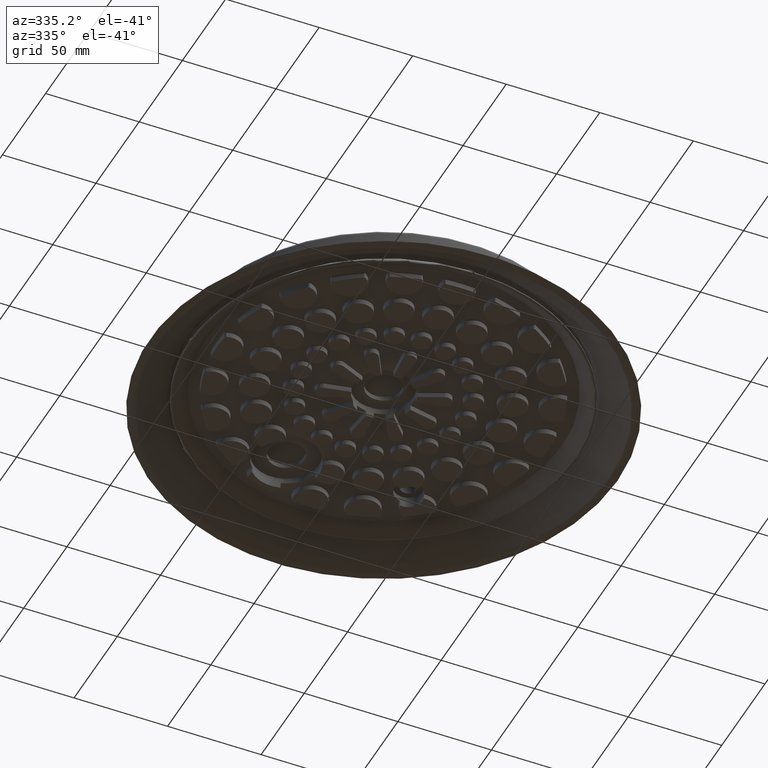
[diagram: clean part render]
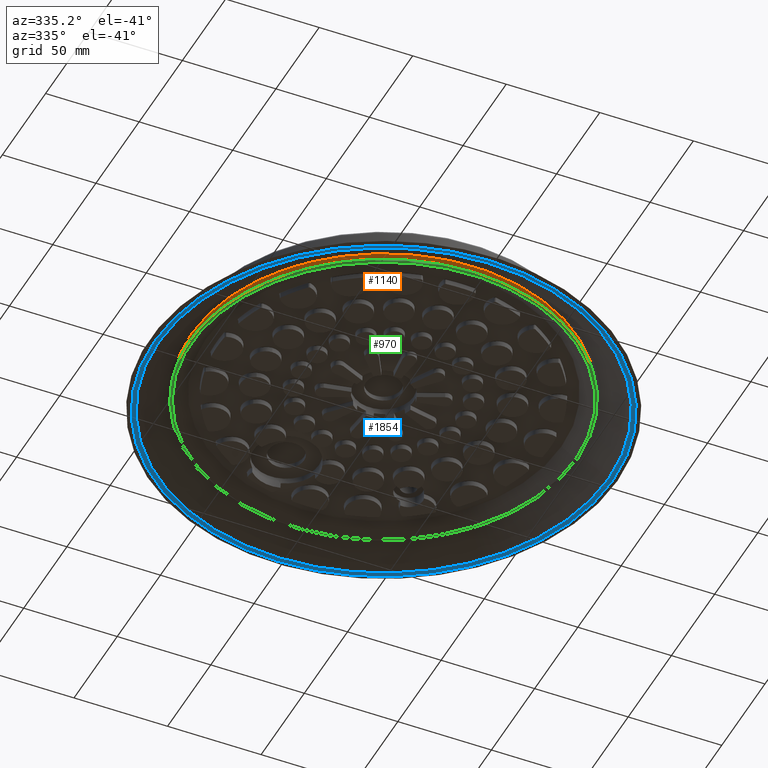
[diagram: same view with three faces highlighted in distinct colors, each labeled with its STEP entity id]
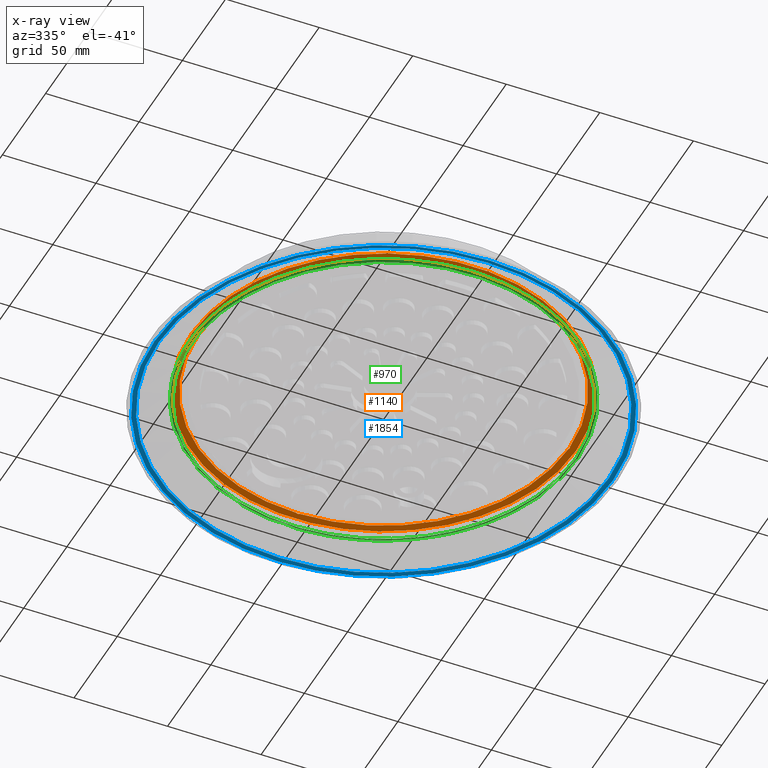
[diagram: x-ray of the same camera — body ghosted, the three highlighted faces saturated]
A machine part, auxiliary view with three faces highlighted in distinct colors.
The next image is the same camera in x-ray (body ghosted, the three faces saturated) — at least one of them is partly hidden behind the body in this view.
Their STEP definitions:

[orange] entity #1140 — the highlighted conical surface has half-angle 82 deg.
#1140 = ADVANCED_FACE( '', ( #2808, #2809 ), #2810, .F. );
#2808 = FACE_OUTER_BOUND( '', #5428, .T. );
#2809 = FACE_BOUND( '', #5429, .T. );
#2810 = CONICAL_SURFACE( '', #5430, 99.2006268263278, 1.43116998663535 );
#5428 = EDGE_LOOP( '', ( #10343 ) );
#5429 = EDGE_LOOP( '', ( #10344, #10345, #10346, #10347, #10348, #10349, #10350, #10351, #10352, #10353, #10354, #10355, #10356, #10357, #10358, #10359 ) );
#5430 = AXIS2_PLACEMENT_3D( '', #10360, #10361, #10362 );
#10343 = ORIENTED_EDGE( '', *, *, #15554, .F. );
#10344 = ORIENTED_EDGE( '', *, *, #15555, .F. );
#10345 = ORIENTED_EDGE( '', *, *, #15556, .T. );
#10346 = ORIENTED_EDGE( '', *, *, #15557, .T. );
#10347 = ORIENTED_EDGE( '', *, *, #15558, .T. );
#10348 = ORIENTED_EDGE( '', *, *, #15559, .F. );
#10349 = ORIENTED_EDGE( '', *, *, #15560, .T. );
#10350 = ORIENTED_EDGE( '', *, *, #15561, .T. );
#10351 = ORIENTED_EDGE( '', *, *, #15562, .T. );
#10352 = ORIENTED_EDGE( '', *, *, #15563, .F. );
#10353 = ORIENTED_EDGE( '', *, *, #15564, .T. );
#10354 = ORIENTED_EDGE( '', *, *, #15565, .T. );
#10355 = ORIENTED_EDGE( '', *, *, #15566, .T. );
#10356 = ORIENTED_EDGE( '', *, *, #15567, .F. );
#10357 = ORIENTED_EDGE( '', *, *, #15568, .T. );
#10358 = ORIENTED_EDGE( '', *, *, #15569, .T. );
#10359 = ORIENTED_EDGE( '', *, *, #15570, .T. );
#10360 = CARTESIAN_POINT( '', ( 0.000000000000000, 0.000000000000000, -2.50194638625172 ) );
#10361 = DIRECTION( '', ( -0.000000000000000, 0.000000000000000, -1.00000000000000 ) );
#10362 = DIRECTION( '', ( -1.00000000000000, 0.000000000000000, 0.000000000000000 ) );
#15554 = EDGE_CURVE( '', #18161, #18161, #18162, .T. );
#15555 = EDGE_CURVE( '', #18163, #18164, #18165, .T. );
#15556 = EDGE_CURVE( '', #18163, #18166, #18167, .T. );
#15557 = EDGE_CURVE( '', #18166, #18168, #18169, .T. );
#15558 = EDGE_CURVE( '', #18168, #18170, #18171, .T. );
#15559 = EDGE_CURVE( '', #18172, #18170, #18173, .T. );
#15560 = EDGE_CURVE( '', #18172, #18174, #18175, .T. );
#15561 = EDGE_CURVE( '', #18174, #18176, #18177, .T. );
#15562 = EDGE_CURVE( '', #18176, #18178, #18179, .T. );
#15563 = EDGE_CURVE( '', #18180, #18178, #18181, .T. );
#15564 = EDGE_CURVE( '', #18180, #18182, #18183, .T. );
#15565 = EDGE_CURVE( '', #18182, #18184, #18185, .T. );
#15566 = EDGE_CURVE( '', #18184, #18186, #18187, .T. );
#15567 = EDGE_CURVE( '', #18188, #18186, #18189, .T. );
#15568 = EDGE_CURVE( '', #18188, #18190, #18191, .T. );
#15569 = EDGE_CURVE( '', #18190, #18192, #18193, .T. );
#15570 = EDGE_CURVE( '', #18192, #18164, #18194, .T. );
#18161 = VERTEX_POINT( '', #22024 );
#18162 = CIRCLE( '', #22025, 102.863376873224 );
#18163 = VERTEX_POINT( '', #22026 );
#18164 = VERTEX_POINT( '', #22027 );
#18165 = B_SPLINE_CURVE_WITH_KNOTS( '', 3, ( #22028, #22029, #22030, #22031 ), .UNSPECIFIED., .F., .F., ( 4, 4 ), ( 0.00949564844719236, 0.00973086272465076 ), .UNSPECIFIED. );
#18166 = VERTEX_POINT( '', #22032 );
#18167 = B_SPLINE_CURVE_WITH_KNOTS( '', 3, ( #22033, #22034, #22035, #22036 ), .UNSPECIFIED., .F., .F., ( 4, 4 ), ( 2.00000000000005E-007, 0.00120020000000000 ), .UNSPECIFIED. );
#18168 = VERTEX_POINT( '', #22037 );
#18169 = B_SPLINE_CURVE_WITH_KNOTS( '', 3, ( #22038, #22039, #22040, #22041 ), .UNSPECIFIED., .F., .F., ( 4, 4 ), ( 0.00949564844719236, 0.00973086272465076 ), .UNSPECIFIED. );
#18170 = VERTEX_POINT( '', #22042 );
#18171 = CIRCLE( '', #22043, 99.2006268263278 );
#18172 = VERTEX_POINT( '', #22044 );
#18173 = B_SPLINE_CURVE_WITH_KNOTS( '', 3, ( #22045, #22046, #22047, #22048 ), .UNSPECIFIED., .F., .F., ( 4, 4 ), ( 0.0119838247623143, 0.0122190390397727 ), .UNSPECIFIED. );
#18174 = VERTEX_POINT( '', #22049 );
#18175 = B_SPLINE_CURVE_WITH_KNOTS( '', 3, ( #22050, #22051, #22052, #22053 ), .UNSPECIFIED., .F., .F., ( 4, 4 ), ( 2.00000000000981E-007, 0.00120020000000000 ), .UNSPECIFIED. );
#18176 = VERTEX_POINT( '', #22054 );
#18177 = B_SPLINE_CURVE_WITH_KNOTS( '', 3, ( #22055, #22056, #22057, #22058 ), .UNSPECIFIED., .F., .F., ( 4, 4 ), ( 0.0119838247623143, 0.0122190390397727 ), .UNSPECIFIED. );
#18178 = VERTEX_POINT( '', #22059 );
#18179 = CIRCLE( '', #22060, 99.2006268263278 );
#18180 = VERTEX_POINT( '', #22061 );
#18181 = B_SPLINE_CURVE_WITH_KNOTS( '', 3, ( #22062, #22063, #22064, #22065 ), .UNSPECIFIED., .F., .F., ( 4, 4 ), ( 0.0119838247623143, 0.0122190390397727 ), .UNSPECIFIED. );
#18182 = VERTEX_POINT( '', #22066 );
#18183 = B_SPLINE_CURVE_WITH_KNOTS( '', 3, ( #22067, #22068, #22069, #22070 ), .UNSPECIFIED., .F., .F., ( 4, 4 ), ( 2.00000000001089E-007, 0.00120020000000000 ), .UNSPECIFIED. );
#18184 = VERTEX_POINT( '', #22071 );
#18185 = B_SPLINE_CURVE_WITH_KNOTS( '', 3, ( #22072, #22073, #22074, #22075 ), .UNSPECIFIED., .F., .F., ( 4, 4 ), ( 0.0119838247623143, 0.0122190390397727 ), .UNSPECIFIED. );
#18186 = VERTEX_POINT( '', #22076 );
#18187 = CIRCLE( '', #22077, 99.2006268263278 );
#18188 = VERTEX_POINT( '', #22078 );
#18189 = B_SPLINE_CURVE_WITH_KNOTS( '', 3, ( #22079, #22080, #22081, #22082 ), .UNSPECIFIED., .F., .F., ( 4, 4 ), ( 0.00949564844719236, 0.00973086272465076 ), .UNSPECIFIED. );
#18190 = VERTEX_POINT( '', #22083 );
#18191 = B_SPLINE_CURVE_WITH_KNOTS( '', 3, ( #22084, #22085, #22086, #22087 ), .UNSPECIFIED., .F., .F., ( 4, 4 ), ( 2.00000000000005E-007, 0.00120020000000000 ), .UNSPECIFIED. );
#18192 = VERTEX_POINT( '', #22088 );
#18193 = B_SPLINE_CURVE_WITH_KNOTS( '', 3, ( #22089, #22090, #22091, #22092 ), .UNSPECIFIED., .F., .F., ( 4, 4 ), ( 0.00949564844719236, 0.00973086272465076 ), .UNSPECIFIED. );
#18194 = CIRCLE( '', #22093, 99.2006268263278 );
#22024 = CARTESIAN_POINT( '', ( 102.863376873224, 0.000000000000000, -3.01671233514878 ) );
#22025 = AXIS2_PLACEMENT_3D( '', #28136, #28137, #28138 );
#22026 = CARTESIAN_POINT( '', ( 0.599999999999987, 99.4317375756773, -2.53468130082961 ) );
#22027 = CARTESIAN_POINT( '', ( 0.599999999999987, 99.1988123050692, -2.50194638625172 ) );
#22028 = CARTESIAN_POINT( '', ( 0.599999999999987, 99.4317375756773, -2.53468130082960 ) );
#22029 = CARTESIAN_POINT( '', ( 0.599999999999987, 99.3540958188722, -2.52376966217956 ) );
#22030 = CARTESIAN_POINT( '', ( 0.599999999999987, 99.2764540620030, -2.51285802398586 ) );
#22031 = CARTESIAN_POINT( '', ( 0.599999999999987, 99.1988123050692, -2.50194638625172 ) );
#22032 = CARTESIAN_POINT( '', ( -0.600000000000013, 99.4317375756773, -2.53468130082961 ) );
#22033 = CARTESIAN_POINT( '', ( 0.599999999999987, 99.4317375756772, -2.53468130082960 ) );
#22034 = CARTESIAN_POINT( '', ( 0.200000389446629, 99.4313428877233, -2.53428661287569 ) );
#22035 = CARTESIAN_POINT( '', ( -0.200000389446655, 99.4313428877233, -2.53428661287569 ) );
#22036 = CARTESIAN_POINT( '', ( -0.600000000000013, 99.4317375756772, -2.53468130082960 ) );
#22037 = CARTESIAN_POINT( '', ( -0.600000000000013, 99.1988123050692, -2.50194638625172 ) );
#22038 = CARTESIAN_POINT( '', ( -0.600000000000013, 99.4317375756773, -2.53468130082960 ) );
#22039 = CARTESIAN_POINT( '', ( -0.600000000000013, 99.3540958188722, -2.52376966217956 ) );
#22040 = CARTESIAN_POINT( '', ( -0.600000000000013, 99.2764540620030, -2.51285802398586 ) );
#22041 = CARTESIAN_POINT( '', ( -0.600000000000013, 99.1988123050692, -2.50194638625172 ) );
#22042 = CARTESIAN_POINT( '', ( -99.1988123050692, 0.600000000000012, -2.50194638625172 ) );
#22043 = AXIS2_PLACEMENT_3D( '', #28139, #28140, #28141 );
#22044 = CARTESIAN_POINT( '', ( -99.4317375756773, 0.600000000000012, -2.53468130082961 ) );
#22045 = CARTESIAN_POINT( '', ( -99.4317375756773, 0.600000000000012, -2.53468130082961 ) );
#22046 = CARTESIAN_POINT( '', ( -99.3540958188722, 0.600000000000012, -2.52376966217956 ) );
#22047 = CARTESIAN_POINT( '', ( -99.2764540620030, 0.600000000000012, -2.51285802398586 ) );
#22048 = CARTESIAN_POINT( '', ( -99.1988123050692, 0.600000000000012, -2.50194638625173 ) );
#22049 = CARTESIAN_POINT( '', ( -99.4317375756773, -0.599999999999988, -2.53468130082961 ) );
#22050 = CARTESIAN_POINT( '', ( -99.4317375756772, 0.600000000000012, -2.53468130082960 ) );
#22051 = CARTESIAN_POINT( '', ( -99.4313428877233, 0.200000389446654, -2.53428661287569 ) );
#22052 = CARTESIAN_POINT( '', ( -99.4313428877233, -0.200000389446630, -2.53428661287569 ) );
#22053 = CARTESIAN_POINT( '', ( -99.4317375756772, -0.599999999999988, -2.53468130082960 ) );
#22054 = CARTESIAN_POINT( '', ( -99.1988123050692, -0.599999999999988, -2.50194638625172 ) );
#22055 = CARTESIAN_POINT( '', ( -99.4317375756773, -0.599999999999988, -2.53468130082961 ) );
#22056 = CARTESIAN_POINT( '', ( -99.3540958188722, -0.599999999999988, -2.52376966217956 ) );
#22057 = CARTESIAN_POINT( '', ( -99.2764540620030, -0.599999999999988, -2.51285802398586 ) );
#22058 = CARTESIAN_POINT( '', ( -99.1988123050692, -0.599999999999988, -2.50194638625173 ) );
#22059 = CARTESIAN_POINT( '', ( -0.600000000000015, -99.1988123050692, -2.50194638625172 ) );
#22060 = AXIS2_PLACEMENT_3D( '', #28142, #28143, #28144 );
#22061 = CARTESIAN_POINT( '', ( -0.600000000000015, -99.4317375756773, -2.53468130082961 ) );
#22062 = CARTESIAN_POINT( '', ( -0.600000000000015, -99.4317375756773, -2.53468130082961 ) );
#22063 = CARTESIAN_POINT( '', ( -0.600000000000015, -99.3540958188722, -2.52376966217956 ) );
#22064 = CARTESIAN_POINT( '', ( -0.600000000000015, -99.2764540620030, -2.51285802398586 ) );
#22065 = CARTESIAN_POINT( '', ( -0.600000000000015, -99.1988123050692, -2.50194638625173 ) );
#22066 = CARTESIAN_POINT( '', ( 0.599999999999985, -99.4317375756773, -2.53468130082961 ) );
#22067 = CARTESIAN_POINT( '', ( -0.600000000000015, -99.4317375756772, -2.53468130082960 ) );
#22068 = CARTESIAN_POINT( '', ( -0.200000389446657, -99.4313428877233, -2.53428661287569 ) );
#22069 = CARTESIAN_POINT( '', ( 0.200000389446627, -99.4313428877233, -2.53428661287569 ) );
#22070 = CARTESIAN_POINT( '', ( 0.599999999999985, -99.4317375756772, -2.53468130082960 ) );
#22071 = CARTESIAN_POINT( '', ( 0.599999999999985, -99.1988123050692, -2.50194638625172 ) );
#22072 = CARTESIAN_POINT( '', ( 0.599999999999985, -99.4317375756773, -2.53468130082961 ) );
#22073 = CARTESIAN_POINT( '', ( 0.599999999999985, -99.3540958188722, -2.52376966217956 ) );
#22074 = CARTESIAN_POINT( '', ( 0.599999999999985, -99.2764540620030, -2.51285802398586 ) );
#22075 = CARTESIAN_POINT( '', ( 0.599999999999985, -99.1988123050692, -2.50194638625173 ) );
#22076 = CARTESIAN_POINT( '', ( 99.1988123050692, -0.600000000000000, -2.50194638625172 ) );
#22077 = AXIS2_PLACEMENT_3D( '', #28145, #28146, #28147 );
#22078 = CARTESIAN_POINT( '', ( 99.4317375756773, -0.600000000000000, -2.53468130082961 ) );
#22079 = CARTESIAN_POINT( '', ( 99.4317375756773, -0.600000000000000, -2.53468130082960 ) );
#22080 = CARTESIAN_POINT( '', ( 99.3540958188722, -0.600000000000000, -2.52376966217956 ) );
#22081 = CARTESIAN_POINT( '', ( 99.2764540620030, -0.600000000000000, -2.51285802398586 ) );
#22082 = CARTESIAN_POINT( '', ( 99.1988123050692, -0.600000000000000, -2.50194638625172 ) );
#22083 = CARTESIAN_POINT( '', ( 99.4317375756773, 0.600000000000000, -2.53468130082961 ) );
#22084 = CARTESIAN_POINT( '', ( 99.4317375756772, -0.600000000000000, -2.53468130082960 ) );
#22085 = CARTESIAN_POINT( '', ( 99.4313428877233, -0.200000389446642, -2.53428661287569 ) );
#22086 = CARTESIAN_POINT( '', ( 99.4313428877233, 0.200000389446642, -2.53428661287569 ) );
#22087 = CARTESIAN_POINT( '', ( 99.4317375756772, 0.600000000000000, -2.53468130082960 ) );
#22088 = CARTESIAN_POINT( '', ( 99.1988123050692, 0.600000000000000, -2.50194638625172 ) );
#22089 = CARTESIAN_POINT( '', ( 99.4317375756773, 0.600000000000000, -2.53468130082960 ) );
#22090 = CARTESIAN_POINT( '', ( 99.3540958188722, 0.600000000000000, -2.52376966217956 ) );
#22091 = CARTESIAN_POINT( '', ( 99.2764540620030, 0.600000000000000, -2.51285802398586 ) );
#22092 = CARTESIAN_POINT( '', ( 99.1988123050692, 0.600000000000000, -2.50194638625172 ) );
#22093 = AXIS2_PLACEMENT_3D( '', #28148, #28149, #28150 );
#28136 = CARTESIAN_POINT( '', ( 0.000000000000000, 0.000000000000000, -3.01671233514878 ) );
#28137 = DIRECTION( '', ( 0.000000000000000, 0.000000000000000, 1.00000000000000 ) );
#28138 = DIRECTION( '', ( 1.00000000000000, 0.000000000000000, 0.000000000000000 ) );
#28139 = CARTESIAN_POINT( '', ( 0.000000000000000, 0.000000000000000, -2.50194638625172 ) );
#28140 = DIRECTION( '', ( 0.000000000000000, 0.000000000000000, 1.00000000000000 ) );
#28141 = DIRECTION( '', ( 1.00000000000000, 0.000000000000000, 0.000000000000000 ) );
#28142 = CARTESIAN_POINT( '', ( 0.000000000000000, 0.000000000000000, -2.50194638625172 ) );
#28143 = DIRECTION( '', ( 0.000000000000000, 0.000000000000000, 1.00000000000000 ) );
#28144 = DIRECTION( '', ( 1.00000000000000, 0.000000000000000, 0.000000000000000 ) );
#28145 = CARTESIAN_POINT( '', ( 0.000000000000000, 0.000000000000000, -2.50194638625172 ) );
#28146 = DIRECTION( '', ( 0.000000000000000, 0.000000000000000, 1.00000000000000 ) );
#28147 = DIRECTION( '', ( 1.00000000000000, 0.000000000000000, 0.000000000000000 ) );
#28148 = CARTESIAN_POINT( '', ( 0.000000000000000, 0.000000000000000, -2.50194638625172 ) );
#28149 = DIRECTION( '', ( 0.000000000000000, 0.000000000000000, 1.00000000000000 ) );
#28150 = DIRECTION( '', ( 1.00000000000000, 0.000000000000000, 0.000000000000000 ) );

[blue] entity #1854 — the highlighted toroidal blend (fillet) surface has major radius 121.8 mm and minor (blend) radius 3 mm.
#1854 = ADVANCED_FACE( '', ( #4015, #4016 ), #4017, .T. );
#4015 = FACE_OUTER_BOUND( '', #7517, .T. );
#4016 = FACE_OUTER_BOUND( '', #7518, .T. );
#4017 = TOROIDAL_SURFACE( '', #7519, 121.800000000000, 3.00000000000000 );
#7517 = EDGE_LOOP( '', ( #13103 ) );
#7518 = EDGE_LOOP( '', ( #13104 ) );
#7519 = AXIS2_PLACEMENT_3D( '', #13105, #13106, #13107 );
#13103 = ORIENTED_EDGE( '', *, *, #16345, .F. );
#13104 = ORIENTED_EDGE( '', *, *, #15521, .T. );
#13105 = CARTESIAN_POINT( '', ( 0.000000000000000, 0.000000000000000, -12.0000000000000 ) );
#13106 = DIRECTION( '', ( 0.000000000000000, 0.000000000000000, 1.00000000000000 ) );
#13107 = DIRECTION( '', ( 1.00000000000000, 0.000000000000000, 0.000000000000000 ) );
#15521 = EDGE_CURVE( '', #18105, #18105, #18106, .T. );
#16345 = EDGE_CURVE( '', #19403, #19403, #19404, .T. );
#18105 = VERTEX_POINT( '', #21948 );
#18106 = CIRCLE( '', #21949, 120.210242207300 );
#19403 = VERTEX_POINT( '', #24484 );
#19404 = CIRCLE( '', #24485, 122.576457135308 );
#21948 = CARTESIAN_POINT( '', ( 120.210242207300, 0.000000000000000, -14.5441442884693 ) );
#21949 = AXIS2_PLACEMENT_3D( '', #28088, #28089, #28090 );
#24484 = CARTESIAN_POINT( '', ( 122.576457135308, 0.000000000000000, -14.8977774788672 ) );
#24485 = AXIS2_PLACEMENT_3D( '', #29183, #29184, #29185 );
#28088 = CARTESIAN_POINT( '', ( 0.000000000000000, 0.000000000000000, -14.5441442884693 ) );
#28089 = DIRECTION( '', ( 0.000000000000000, 0.000000000000000, 1.00000000000000 ) );
#28090 = DIRECTION( '', ( 1.00000000000000, 0.000000000000000, 0.000000000000000 ) );
#29183 = CARTESIAN_POINT( '', ( 0.000000000000000, 0.000000000000000, -14.8977774788672 ) );
#29184 = DIRECTION( '', ( 0.000000000000000, 0.000000000000000, 1.00000000000000 ) );
#29185 = DIRECTION( '', ( 1.00000000000000, 0.000000000000000, 0.000000000000000 ) );

[green] entity #970 — the highlighted toroidal blend (fillet) surface has major radius 103 mm and minor (blend) radius 0.7 mm.
#970 = ADVANCED_FACE( '', ( #2532, #2533 ), #2534, .T. );
#2532 = FACE_OUTER_BOUND( '', #5002, .T. );
#2533 = FACE_OUTER_BOUND( '', #5003, .T. );
#2534 = TOROIDAL_SURFACE( '', #5004, 103.000000000000, 0.700000000000000 );
#5002 = EDGE_LOOP( '', ( #9732 ) );
#5003 = EDGE_LOOP( '', ( #9733, #9734, #9735, #9736, #9737, #9738, #9739, #9740, #9741, #9742, #9743, #9744, #9745, #9746, #9747, #9748, #9749, #9750, #9751, #9752, #9753, #9754, #9755, #9756 ) );
#5004 = AXIS2_PLACEMENT_3D( '', #9757, #9758, #9759 );
#9732 = ORIENTED_EDGE( '', *, *, #15163, .T. );
#9733 = ORIENTED_EDGE( '', *, *, #15164, .F. );
#9734 = ORIENTED_EDGE( '', *, *, #15165, .F. );
#9735 = ORIENTED_EDGE( '', *, *, #15166, .T. );
#9736 = ORIENTED_EDGE( '', *, *, #15167, .T. );
#9737 = ORIENTED_EDGE( '', *, *, #15168, .T. );
#9738 = ORIENTED_EDGE( '', *, *, #15169, .T. );
#9739 = ORIENTED_EDGE( '', *, *, #15170, .F. );
#9740 = ORIENTED_EDGE( '', *, *, #15171, .F. );
#9741 = ORIENTED_EDGE( '', *, *, #15172, .T. );
#9742 = ORIENTED_EDGE( '', *, *, #15173, .T. );
#9743 = ORIENTED_EDGE( '', *, *, #15174, .T. );
#9744 = ORIENTED_EDGE( '', *, *, #15175, .T. );
#9745 = ORIENTED_EDGE( '', *, *, #15176, .F. );
#9746 = ORIENTED_EDGE( '', *, *, #15177, .F. );
#9747 = ORIENTED_EDGE( '', *, *, #15178, .T. );
#9748 = ORIENTED_EDGE( '', *, *, #15179, .T. );
#9749 = ORIENTED_EDGE( '', *, *, #15180, .T. );
#9750 = ORIENTED_EDGE( '', *, *, #15181, .T. );
#9751 = ORIENTED_EDGE( '', *, *, #15182, .F. );
#9752 = ORIENTED_EDGE( '', *, *, #15183, .F. );
#9753 = ORIENTED_EDGE( '', *, *, #15184, .T. );
#9754 = ORIENTED_EDGE( '', *, *, #15185, .T. );
#9755 = ORIENTED_EDGE( '', *, *, #15186, .T. );
#9756 = ORIENTED_EDGE( '', *, *, #15187, .T. );
#9757 = CARTESIAN_POINT( '', ( 0.000000000000000, 0.000000000000000, -7.80000000000000 ) );
#9758 = DIRECTION( '', ( 0.000000000000000, 0.000000000000000, 1.00000000000000 ) );
#9759 = DIRECTION( '', ( 1.00000000000000, 0.000000000000000, 0.000000000000000 ) );
#15163 = EDGE_CURVE( '', #17482, #17482, #17483, .T. );
#15164 = EDGE_CURVE( '', #17484, #17485, #17486, .T. );
#15165 = EDGE_CURVE( '', #17487, #17484, #17488, .T. );
#15166 = EDGE_CURVE( '', #17487, #17489, #17490, .T. );
#15167 = EDGE_CURVE( '', #17489, #17491, #17492, .T. );
#15168 = EDGE_CURVE( '', #17491, #17493, #17494, .T. );
#15169 = EDGE_CURVE( '', #17493, #17495, #17496, .T. );
#15170 = EDGE_CURVE( '', #17497, #17495, #17498, .T. );
#15171 = EDGE_CURVE( '', #17499, #17497, #17500, .T. );
#15172 = EDGE_CURVE( '', #17499, #17501, #17502, .T. );
#15173 = EDGE_CURVE( '', #17501, #17503, #17504, .T. );
#15174 = EDGE_CURVE( '', #17503, #17505, #17506, .T. );
#15175 = EDGE_CURVE( '', #17505, #17507, #17508, .T. );
#15176 = EDGE_CURVE( '', #17509, #17507, #17510, .T. );
#15177 = EDGE_CURVE( '', #17511, #17509, #17512, .T. );
#15178 = EDGE_CURVE( '', #17511, #17513, #17514, .T. );
#15179 = EDGE_CURVE( '', #17513, #17515, #17516, .T. );
#15180 = EDGE_CURVE( '', #17515, #17517, #17518, .T. );
#15181 = EDGE_CURVE( '', #17517, #17519, #17520, .T. );
#15182 = EDGE_CURVE( '', #17521, #17519, #17522, .T. );
#15183 = EDGE_CURVE( '', #17523, #17521, #17524, .T. );
#15184 = EDGE_CURVE( '', #17523, #17525, #17526, .T. );
#15185 = EDGE_CURVE( '', #17525, #17527, #17528, .T. );
#15186 = EDGE_CURVE( '', #17527, #17529, #17530, .T. );
#15187 = EDGE_CURVE( '', #17529, #17485, #17531, .T. );
#17482 = VERTEX_POINT( '', #20843 );
#17483 = CIRCLE( '', #20844, 102.598496494554 );
#17484 = VERTEX_POINT( '', #20845 );
#17485 = VERTEX_POINT( '', #20846 );
#17486 = B_SPLINE_CURVE_WITH_KNOTS( '', 3, ( #20847, #20848, #20849, #20850, #20851 ), .UNSPECIFIED., .F., .F., ( 4, 1, 4 ), ( 0.00167227337658808, 0.00167288319165784, 0.00167349300672761 ), .UNSPECIFIED. );
#17487 = VERTEX_POINT( '', #20852 );
#17488 = CIRCLE( '', #20853, 103.494974746831 );
#17489 = VERTEX_POINT( '', #20854 );
#17490 = B_SPLINE_CURVE_WITH_KNOTS( '', 3, ( #20855, #20856, #20857, #20858, #20859 ), .UNSPECIFIED., .F., .F., ( 4, 1, 4 ), ( 0.00166738800334526, 0.00166799724698287, 0.00166860649062049 ), .UNSPECIFIED. );
#17491 = VERTEX_POINT( '', #20860 );
#17492 = B_SPLINE_CURVE_WITH_KNOTS( '', 3, ( #20861, #20862, #20863, #20864, #20865, #20866, #20867, #20868 ), .UNSPECIFIED., .F., .F., ( 4, 2, 2, 4 ), ( 0.000000000000000, 0.000406641453716318, 0.000609962180574477, 0.000813282907432635 ), .UNSPECIFIED. );
#17493 = VERTEX_POINT( '', #20869 );
#17494 = B_SPLINE_CURVE_WITH_KNOTS( '', 3, ( #20870, #20871, #20872, #20873 ), .UNSPECIFIED., .F., .F., ( 4, 4 ), ( 0.000500200000000000, 0.000700200000000000 ), .UNSPECIFIED. );
#17495 = VERTEX_POINT( '', #20874 );
#17496 = B_SPLINE_CURVE_WITH_KNOTS( '', 3, ( #20875, #20876, #20877, #20878, #20879, #20880, #20881, #20882 ), .UNSPECIFIED., .F., .F., ( 4, 2, 2, 4 ), ( 1.63493513617328E-016, 0.000406311477349388, 0.000609467216024001, 0.000812622954698614 ), .UNSPECIFIED. );
#17497 = VERTEX_POINT( '', #20883 );
#17498 = B_SPLINE_CURVE_WITH_KNOTS( '', 3, ( #20884, #20885, #20886, #20887, #20888 ), .UNSPECIFIED., .F., .F., ( 4, 1, 4 ), ( 0.00166738800334526, 0.00166799724698287, 0.00166860649062049 ), .UNSPECIFIED. );
#17499 = VERTEX_POINT( '', #20889 );
#17500 = CIRCLE( '', #20890, 103.494974746831 );
#17501 = VERTEX_POINT( '', #20891 );
#17502 = B_SPLINE_CURVE_WITH_KNOTS( '', 3, ( #20892, #20893, #20894, #20895, #20896 ), .UNSPECIFIED., .F., .F., ( 4, 1, 4 ), ( 0.00379546857143017, 0.00379607923669796, 0.00379668990196575 ), .UNSPECIFIED. );
#17503 = VERTEX_POINT( '', #20897 );
#17504 = B_SPLINE_CURVE_WITH_KNOTS( '', 3, ( #20898, #20899, #20900, #20901, #20902, #20903, #20904, #20905 ), .UNSPECIFIED., .F., .F., ( 4, 2, 2, 4 ), ( 6.18755614166707E-018, 0.000406641453716315, 0.000609962180574469, 0.000813282907432624 ), .UNSPECIFIED. );
#17505 = VERTEX_POINT( '', #20906 );
#17506 = B_SPLINE_CURVE_WITH_KNOTS( '', 3, ( #20907, #20908, #20909, #20910 ), .UNSPECIFIED., .F., .F., ( 4, 4 ), ( 0.000500200000000000, 0.000700200000000000 ), .UNSPECIFIED. );
#17507 = VERTEX_POINT( '', #20911 );
#17508 = B_SPLINE_CURVE_WITH_KNOTS( '', 3, ( #20912, #20913, #20914, #20915, #20916, #20917, #20918, #20919 ), .UNSPECIFIED., .F., .F., ( 4, 2, 2, 4 ), ( 1.63493513617328E-016, 0.000406311477349387, 0.000609467216023999, 0.000812622954698612 ), .UNSPECIFIED. );
#17509 = VERTEX_POINT( '', #20920 );
#17510 = B_SPLINE_CURVE_WITH_KNOTS( '', 3, ( #20921, #20922, #20923, #20924, #20925 ), .UNSPECIFIED., .F., .F., ( 4, 1, 4 ), ( 0.00379546857143017, 0.00379607923669796, 0.00379668990196575 ), .UNSPECIFIED. );
#17511 = VERTEX_POINT( '', #20926 );
#17512 = CIRCLE( '', #20927, 103.494974746831 );
#17513 = VERTEX_POINT( '', #20928 );
#17514 = B_SPLINE_CURVE_WITH_KNOTS( '', 3, ( #20929, #20930, #20931, #20932, #20933 ), .UNSPECIFIED., .F., .F., ( 4, 1, 4 ), ( 0.00379546857143017, 0.00379607923669796, 0.00379668990196575 ), .UNSPECIFIED. );
#17515 = VERTEX_POINT( '', #20934 );
#17516 = B_SPLINE_CURVE_WITH_KNOTS( '', 3, ( #20935, #20936, #20937, #20938, #20939, #20940, #20941, #20942 ), .UNSPECIFIED., .F., .F., ( 4, 2, 2, 4 ), ( 6.18755614166707E-018, 0.000406641453716315, 0.000609962180574470, 0.000813282907432625 ), .UNSPECIFIED. );
#17517 = VERTEX_POINT( '', #20943 );
#17518 = B_SPLINE_CURVE_WITH_KNOTS( '', 3, ( #20944, #20945, #20946, #20947 ), .UNSPECIFIED., .F., .F., ( 4, 4 ), ( 0.000500200000000001, 0.000700200000000001 ), .UNSPECIFIED. );
#17519 = VERTEX_POINT( '', #20948 );
#17520 = B_SPLINE_CURVE_WITH_KNOTS( '', 3, ( #20949, #20950, #20951, #20952, #20953, #20954, #20955, #20956 ), .UNSPECIFIED., .F., .F., ( 4, 2, 2, 4 ), ( 1.63493513617328E-016, 0.000406311477349387, 0.000609467216023999, 0.000812622954698612 ), .UNSPECIFIED. );
#17521 = VERTEX_POINT( '', #20957 );
#17522 = B_SPLINE_CURVE_WITH_KNOTS( '', 3, ( #20958, #20959, #20960, #20961, #20962 ), .UNSPECIFIED., .F., .F., ( 4, 1, 4 ), ( 0.00379546857143017, 0.00379607923669796, 0.00379668990196575 ), .UNSPECIFIED. );
#17523 = VERTEX_POINT( '', #20963 );
#17524 = CIRCLE( '', #20964, 103.494974746831 );
#17525 = VERTEX_POINT( '', #20965 );
#17526 = B_SPLINE_CURVE_WITH_KNOTS( '', 3, ( #20966, #20967, #20968, #20969, #20970 ), .UNSPECIFIED., .F., .F., ( 4, 1, 4 ), ( 0.00167227337658808, 0.00167288319165784, 0.00167349300672761 ), .UNSPECIFIED. );
#17527 = VERTEX_POINT( '', #20971 );
#17528 = B_SPLINE_CURVE_WITH_KNOTS( '', 3, ( #20972, #20973, #20974, #20975, #20976, #20977, #20978, #20979 ), .UNSPECIFIED., .F., .F., ( 4, 2, 2, 4 ), ( 0.000000000000000, 0.000406641453716319, 0.000609962180574477, 0.000813282907432635 ), .UNSPECIFIED. );
#17529 = VERTEX_POINT( '', #20980 );
#17530 = B_SPLINE_CURVE_WITH_KNOTS( '', 3, ( #20981, #20982, #20983, #20984 ), .UNSPECIFIED., .F., .F., ( 4, 4 ), ( 0.000500200000000001, 0.000700200000000001 ), .UNSPECIFIED. );
#17531 = B_SPLINE_CURVE_WITH_KNOTS( '', 3, ( #20985, #20986, #20987, #20988, #20989, #20990, #20991, #20992 ), .UNSPECIFIED., .F., .F., ( 4, 2, 2, 4 ), ( 1.67216056450558E-016, 0.000406311477349400, 0.000609467216024017, 0.000812622954698634 ), .UNSPECIFIED. );
#20843 = CARTESIAN_POINT( '', ( 102.598496494554, 0.000000000000000, -8.37340643100233 ) );
#20844 = AXIS2_PLACEMENT_3D( '', #27677, #27678, #27679 );
#20845 = CARTESIAN_POINT( '', ( 0.599999999999987, 103.493235517338, -7.30502525316945 ) );
#20846 = CARTESIAN_POINT( '', ( 0.599999999999987, 103.494104375489, -7.30589562451068 ) );
#20847 = CARTESIAN_POINT( '', ( 0.599999999999986, 103.493235517338, -7.30502525316946 ) );
#20848 = CARTESIAN_POINT( '', ( 0.599999999999986, 103.493380470953, -7.30517020434912 ) );
#20849 = CARTESIAN_POINT( '', ( 0.599999999999986, 103.493670234228, -7.30546021744424 ) );
#20850 = CARTESIAN_POINT( '', ( 0.599999999999986, 103.493959709688, -7.30575045193513 ) );
#20851 = CARTESIAN_POINT( '', ( 0.599999999999986, 103.494104375489, -7.30589562451070 ) );
#20852 = CARTESIAN_POINT( '', ( 103.493235517338, 0.600000000000000, -7.30502525316945 ) );
#20853 = AXIS2_PLACEMENT_3D( '', #27680, #27681, #27682 );
#20854 = CARTESIAN_POINT( '', ( 103.494104375489, 0.600000000000000, -7.30589562451068 ) );
#20855 = CARTESIAN_POINT( '', ( 103.493235517338, 0.600000000000000, -7.30502525316946 ) );
#20856 = CARTESIAN_POINT( '', ( 103.493380471866, 0.600000000000000, -7.30517020526175 ) );
#20857 = CARTESIAN_POINT( '', ( 103.493670236051, 0.600000000000000, -7.30546021927068 ) );
#20858 = CARTESIAN_POINT( '', ( 103.493959710599, 0.600000000000000, -7.30575045284896 ) );
#20859 = CARTESIAN_POINT( '', ( 103.494104375489, 0.600000000000000, -7.30589562451070 ) );
#20860 = CARTESIAN_POINT( '', ( 103.699914837234, 0.100000000000000, -7.80719194395243 ) );
#20861 = CARTESIAN_POINT( '', ( 103.494104375489, 0.600000000000000, -7.30589562451068 ) );
#20862 = CARTESIAN_POINT( '', ( 103.591352096557, 0.600000000000013, -7.40348401118825 ) );
#20863 = CARTESIAN_POINT( '', ( 103.650781690925, 0.541573329874703, -7.52571686504468 ) );
#20864 = CARTESIAN_POINT( '', ( 103.689839239772, 0.407465157564780, -7.67483911757737 ) );
#20865 = CARTESIAN_POINT( '', ( 103.695559928850, 0.355023545349983, -7.71945952075312 ) );
#20866 = CARTESIAN_POINT( '', ( 103.700402483365, 0.236293098312160, -7.78601672051948 ) );
#20867 = CARTESIAN_POINT( '', ( 103.699847587137, 0.169021756213325, -7.80725919404957 ) );
#20868 = CARTESIAN_POINT( '', ( 103.699914837241, 0.0999999999992965, -7.80719194394599 ) );
#20869 = CARTESIAN_POINT( '', ( 103.699914837234, -0.100000000000000, -7.80719194395243 ) );
#20870 = CARTESIAN_POINT( '', ( 103.699914837234, 0.100000000000000, -7.80719194395232 ) );
#20871 = CARTESIAN_POINT( '', ( 103.699979792637, 0.0333333966214286, -7.80712698854956 ) );
#20872 = CARTESIAN_POINT( '', ( 103.699979792637, -0.0333333966214286, -7.80712698854956 ) );
#20873 = CARTESIAN_POINT( '', ( 103.699914837234, -0.100000000000000, -7.80719194395232 ) );
#20874 = CARTESIAN_POINT( '', ( 103.494104375489, -0.600000000000000, -7.30589562451068 ) );
#20875 = CARTESIAN_POINT( '', ( 103.699914837233, -0.100000000000000, -7.80719194395329 ) );
#20876 = CARTESIAN_POINT( '', ( 103.699780291153, -0.238090594236131, -7.80732649003350 ) );
#20877 = CARTESIAN_POINT( '', ( 103.702900157750, -0.362508272911212, -7.72478104047683 ) );
#20878 = CARTESIAN_POINT( '', ( 103.663829571729, -0.496827392805507, -7.57549634255749 ) );
#20879 = CARTESIAN_POINT( '', ( 103.643583152425, -0.533538251363001, -7.52073617270614 ) );
#20880 = CARTESIAN_POINT( '', ( 103.583216313109, -0.585386120823239, -7.41027794747268 ) );
#20881 = CARTESIAN_POINT( '', ( 103.542816170612, -0.600000000000029, -7.35477806047963 ) );
#20882 = CARTESIAN_POINT( '', ( 103.494104375489, -0.600000000000000, -7.30589562451068 ) );
#20883 = CARTESIAN_POINT( '', ( 103.493235517338, -0.600000000000000, -7.30502525316945 ) );
#20884 = CARTESIAN_POINT( '', ( 103.493235517338, -0.600000000000000, -7.30502525316946 ) );
#20885 = CARTESIAN_POINT( '', ( 103.493380471866, -0.600000000000000, -7.30517020526175 ) );
#20886 = CARTESIAN_POINT( '', ( 103.493670236051, -0.600000000000000, -7.30546021927068 ) );
#20887 = CARTESIAN_POINT( '', ( 103.493959710599, -0.600000000000000, -7.30575045284896 ) );
#20888 = CARTESIAN_POINT( '', ( 103.494104375489, -0.600000000000000, -7.30589562451070 ) );
#20889 = CARTESIAN_POINT( '', ( 0.599999999999984, -103.493235517338, -7.30502525316945 ) );
#20890 = AXIS2_PLACEMENT_3D( '', #27683, #27684, #27685 );
#20891 = CARTESIAN_POINT( '', ( 0.599999999999984, -103.494104375489, -7.30589562451068 ) );
#20892 = CARTESIAN_POINT( '', ( 0.599999999999984, -103.493235517338, -7.30502525316946 ) );
#20893 = CARTESIAN_POINT( '', ( 0.599999999999984, -103.493380469498, -7.30517020289440 ) );
#20894 = CARTESIAN_POINT( '', ( 0.599999999999984, -103.493670231322, -7.30546021453288 ) );
#20895 = CARTESIAN_POINT( '', ( 0.599999999999984, -103.493959708237, -7.30575045047851 ) );
#20896 = CARTESIAN_POINT( '', ( 0.599999999999984, -103.494104375489, -7.30589562451070 ) );
#20897 = CARTESIAN_POINT( '', ( 0.0999999999999842, -103.699914837234, -7.80719194395243 ) );
#20898 = CARTESIAN_POINT( '', ( 0.599999999999984, -103.494104375489, -7.30589562451069 ) );
#20899 = CARTESIAN_POINT( '', ( 0.599999999999995, -103.591352096557, -7.40348401118826 ) );
#20900 = CARTESIAN_POINT( '', ( 0.541573329874681, -103.650781690925, -7.52571686504469 ) );
#20901 = CARTESIAN_POINT( '', ( 0.407465157564759, -103.689839239772, -7.67483911757738 ) );
#20902 = CARTESIAN_POINT( '', ( 0.355023545349964, -103.695559928850, -7.71945952075312 ) );
#20903 = CARTESIAN_POINT( '', ( 0.236293098312143, -103.700402483365, -7.78601672051948 ) );
#20904 = CARTESIAN_POINT( '', ( 0.169021756213210, -103.699847587137, -7.80725919404959 ) );
#20905 = CARTESIAN_POINT( '', ( 0.0999999999991824, -103.699914837241, -7.80719194394599 ) );
#20906 = CARTESIAN_POINT( '', ( -0.100000000000016, -103.699914837234, -7.80719194395243 ) );
#20907 = CARTESIAN_POINT( '', ( 0.0999999999999842, -103.699914837233, -7.80719194395319 ) );
#20908 = CARTESIAN_POINT( '', ( 0.0333333966214128, -103.699979792636, -7.80712698855044 ) );
#20909 = CARTESIAN_POINT( '', ( -0.0333333966214443, -103.699979792636, -7.80712698855044 ) );
#20910 = CARTESIAN_POINT( '', ( -0.100000000000016, -103.699914837233, -7.80719194395319 ) );
#20911 = CARTESIAN_POINT( '', ( -0.600000000000016, -103.494104375489, -7.30589562451068 ) );
#20912 = CARTESIAN_POINT( '', ( -0.100000000000016, -103.699914837233, -7.80719194395329 ) );
#20913 = CARTESIAN_POINT( '', ( -0.238090594236146, -103.699780291153, -7.80732649003350 ) );
#20914 = CARTESIAN_POINT( '', ( -0.362508272911227, -103.702900157750, -7.72478104047683 ) );
#20915 = CARTESIAN_POINT( '', ( -0.496827392805522, -103.663829571729, -7.57549634255749 ) );
#20916 = CARTESIAN_POINT( '', ( -0.533538251363016, -103.643583152425, -7.52073617270614 ) );
#20917 = CARTESIAN_POINT( '', ( -0.585386120823254, -103.583216313109, -7.41027794747268 ) );
#20918 = CARTESIAN_POINT( '', ( -0.600000000000023, -103.542816170612, -7.35477806047967 ) );
#20919 = CARTESIAN_POINT( '', ( -0.600000000000016, -103.494104375489, -7.30589562451070 ) );
#20920 = CARTESIAN_POINT( '', ( -0.600000000000016, -103.493235517338, -7.30502525316945 ) );
#20921 = CARTESIAN_POINT( '', ( -0.600000000000016, -103.493235517338, -7.30502525316946 ) );
#20922 = CARTESIAN_POINT( '', ( -0.600000000000016, -103.493380469498, -7.30517020289440 ) );
#20923 = CARTESIAN_POINT( '', ( -0.600000000000016, -103.493670231322, -7.30546021453288 ) );
#20924 = CARTESIAN_POINT( '', ( -0.600000000000016, -103.493959708237, -7.30575045047851 ) );
#20925 = CARTESIAN_POINT( '', ( -0.600000000000016, -103.494104375489, -7.30589562451070 ) );
#20926 = CARTESIAN_POINT( '', ( -103.493235517338, -0.599999999999987, -7.30502525316945 ) );
#20927 = AXIS2_PLACEMENT_3D( '', #27686, #27687, #27688 );
#20928 = CARTESIAN_POINT( '', ( -103.494104375489, -0.599999999999987, -7.30589562451068 ) );
#20929 = CARTESIAN_POINT( '', ( -103.493235517338, -0.599999999999987, -7.30502525316946 ) );
#20930 = CARTESIAN_POINT( '', ( -103.493380469498, -0.599999999999987, -7.30517020289440 ) );
#20931 = CARTESIAN_POINT( '', ( -103.493670231322, -0.599999999999987, -7.30546021453288 ) );
#20932 = CARTESIAN_POINT( '', ( -103.493959708237, -0.599999999999987, -7.30575045047851 ) );
#20933 = CARTESIAN_POINT( '', ( -103.494104375489, -0.599999999999987, -7.30589562451070 ) );
#20934 = CARTESIAN_POINT( '', ( -103.699914837234, -0.0999999999999872, -7.80719194395243 ) );
#20935 = CARTESIAN_POINT( '', ( -103.494104375489, -0.599999999999987, -7.30589562451069 ) );
#20936 = CARTESIAN_POINT( '', ( -103.591352096557, -0.599999999999998, -7.40348401118826 ) );
#20937 = CARTESIAN_POINT( '', ( -103.650781690925, -0.541573329874684, -7.52571686504469 ) );
#20938 = CARTESIAN_POINT( '', ( -103.689839239772, -0.407465157564762, -7.67483911757738 ) );
#20939 = CARTESIAN_POINT( '', ( -103.695559928850, -0.355023545349967, -7.71945952075312 ) );
#20940 = CARTESIAN_POINT( '', ( -103.700402483365, -0.236293098312145, -7.78601672051948 ) );
#20941 = CARTESIAN_POINT( '', ( -103.699847587137, -0.169021756213311, -7.80725919404957 ) );
#20942 = CARTESIAN_POINT( '', ( -103.699914837241, -0.0999999999992838, -7.80719194394599 ) );
#20943 = CARTESIAN_POINT( '', ( -103.699914837234, 0.100000000000013, -7.80719194395243 ) );
#20944 = CARTESIAN_POINT( '', ( -103.699914837234, -0.0999999999999871, -7.80719194395232 ) );
#20945 = CARTESIAN_POINT( '', ( -103.699979792637, -0.0333333966214158, -7.80712698854956 ) );
#20946 = CARTESIAN_POINT( '', ( -103.699979792637, 0.0333333966214413, -7.80712698854956 ) );
#20947 = CARTESIAN_POINT( '', ( -103.699914837234, 0.100000000000013, -7.80719194395232 ) );
#20948 = CARTESIAN_POINT( '', ( -103.494104375489, 0.600000000000013, -7.30589562451068 ) );
#20949 = CARTESIAN_POINT( '', ( -103.699914837233, 0.100000000000013, -7.80719194395329 ) );
#20950 = CARTESIAN_POINT( '', ( -103.699780291153, 0.238090594236143, -7.80732649003350 ) );
#20951 = CARTESIAN_POINT( '', ( -103.702900157750, 0.362508272911224, -7.72478104047683 ) );
#20952 = CARTESIAN_POINT( '', ( -103.663829571729, 0.496827392805519, -7.57549634255749 ) );
#20953 = CARTESIAN_POINT( '', ( -103.643583152425, 0.533538251363013, -7.52073617270614 ) );
#20954 = CARTESIAN_POINT( '', ( -103.583216313109, 0.585386120823251, -7.41027794747268 ) );
#20955 = CARTESIAN_POINT( '', ( -103.542816170612, 0.600000000000019, -7.35477806047967 ) );
#20956 = CARTESIAN_POINT( '', ( -103.494104375489, 0.600000000000013, -7.30589562451070 ) );
#20957 = CARTESIAN_POINT( '', ( -103.493235517338, 0.600000000000013, -7.30502525316945 ) );
#20958 = CARTESIAN_POINT( '', ( -103.493235517338, 0.600000000000013, -7.30502525316946 ) );
#20959 = CARTESIAN_POINT( '', ( -103.493380469498, 0.600000000000013, -7.30517020289440 ) );
#20960 = CARTESIAN_POINT( '', ( -103.493670231322, 0.600000000000013, -7.30546021453288 ) );
#20961 = CARTESIAN_POINT( '', ( -103.493959708237, 0.600000000000013, -7.30575045047851 ) );
#20962 = CARTESIAN_POINT( '', ( -103.494104375489, 0.600000000000013, -7.30589562451070 ) );
#20963 = CARTESIAN_POINT( '', ( -0.600000000000013, 103.493235517338, -7.30502525316945 ) );
#20964 = AXIS2_PLACEMENT_3D( '', #27689, #27690, #27691 );
#20965 = CARTESIAN_POINT( '', ( -0.600000000000013, 103.494104375489, -7.30589562451068 ) );
#20966 = CARTESIAN_POINT( '', ( -0.600000000000014, 103.493235517338, -7.30502525316946 ) );
#20967 = CARTESIAN_POINT( '', ( -0.600000000000014, 103.493380470953, -7.30517020434912 ) );
#20968 = CARTESIAN_POINT( '', ( -0.600000000000014, 103.493670234228, -7.30546021744424 ) );
#20969 = CARTESIAN_POINT( '', ( -0.600000000000014, 103.493959709688, -7.30575045193513 ) );
#20970 = CARTESIAN_POINT( '', ( -0.600000000000014, 103.494104375489, -7.30589562451070 ) );
#20971 = CARTESIAN_POINT( '', ( -0.100000000000013, 103.699914837234, -7.80719194395243 ) );
#20972 = CARTESIAN_POINT( '', ( -0.600000000000013, 103.494104375489, -7.30589562451068 ) );
#20973 = CARTESIAN_POINT( '', ( -0.600000000000026, 103.591352096557, -7.40348401118826 ) );
#20974 = CARTESIAN_POINT( '', ( -0.541573329874717, 103.650781690925, -7.52571686504468 ) );
#20975 = CARTESIAN_POINT( '', ( -0.407465157564794, 103.689839239772, -7.67483911757737 ) );
#20976 = CARTESIAN_POINT( '', ( -0.355023545349996, 103.695559928850, -7.71945952075312 ) );
#20977 = CARTESIAN_POINT( '', ( -0.236293098312173, 103.700402483365, -7.78601672051948 ) );
#20978 = CARTESIAN_POINT( '', ( -0.169021756213338, 103.699847587137, -7.80725919404958 ) );
#20979 = CARTESIAN_POINT( '', ( -0.0999999999993100, 103.699914837241, -7.80719194394599 ) );
#20980 = CARTESIAN_POINT( '', ( 0.0999999999999865, 103.699914837234, -7.80719194395243 ) );
#20981 = CARTESIAN_POINT( '', ( -0.100000000000013, 103.699914837234, -7.80719194395232 ) );
#20982 = CARTESIAN_POINT( '', ( -0.0333333966214418, 103.699979792637, -7.80712698854956 ) );
#20983 = CARTESIAN_POINT( '', ( 0.0333333966214153, 103.699979792637, -7.80712698854956 ) );
#20984 = CARTESIAN_POINT( '', ( 0.0999999999999866, 103.699914837234, -7.80719194395232 ) );
#20985 = CARTESIAN_POINT( '', ( 0.0999999999999865, 103.699914837233, -7.80719194395331 ) );
#20986 = CARTESIAN_POINT( '', ( 0.238090594236124, 103.699780291153, -7.80732649003351 ) );
#20987 = CARTESIAN_POINT( '', ( 0.362508272911200, 103.702900157750, -7.72478104047683 ) );
#20988 = CARTESIAN_POINT( '', ( 0.496827392805494, 103.663829571729, -7.57549634255749 ) );
#20989 = CARTESIAN_POINT( '', ( 0.533538251362987, 103.643583152425, -7.52073617270614 ) );
#20990 = CARTESIAN_POINT( '', ( 0.585386120823226, 103.583216313109, -7.41027794747267 ) );
#20991 = CARTESIAN_POINT( '', ( 0.600000000000016, 103.542816170612, -7.35477806047963 ) );
#20992 = CARTESIAN_POINT( '', ( 0.599999999999987, 103.494104375489, -7.30589562451068 ) );
#27677 = CARTESIAN_POINT( '', ( 0.000000000000000, 0.000000000000000, -8.37340643100233 ) );
#27678 = DIRECTION( '', ( 0.000000000000000, 0.000000000000000, 1.00000000000000 ) );
#27679 = DIRECTION( '', ( 1.00000000000000, 0.000000000000000, 0.000000000000000 ) );
#27680 = CARTESIAN_POINT( '', ( 0.000000000000000, 0.000000000000000, -7.30502525316945 ) );
#27681 = DIRECTION( '', ( 0.000000000000000, 0.000000000000000, 1.00000000000000 ) );
#27682 = DIRECTION( '', ( 1.00000000000000, 0.000000000000000, 0.000000000000000 ) );
#27683 = CARTESIAN_POINT( '', ( 0.000000000000000, 0.000000000000000, -7.30502525316945 ) );
#27684 = DIRECTION( '', ( 0.000000000000000, 0.000000000000000, 1.00000000000000 ) );
#27685 = DIRECTION( '', ( 1.00000000000000, 0.000000000000000, 0.000000000000000 ) );
#27686 = CARTESIAN_POINT( '', ( 0.000000000000000, 0.000000000000000, -7.30502525316945 ) );
#27687 = DIRECTION( '', ( 0.000000000000000, 0.000000000000000, 1.00000000000000 ) );
#27688 = DIRECTION( '', ( 1.00000000000000, 0.000000000000000, 0.000000000000000 ) );
#27689 = CARTESIAN_POINT( '', ( 0.000000000000000, 0.000000000000000, -7.30502525316945 ) );
#27690 = DIRECTION( '', ( 0.000000000000000, 0.000000000000000, 1.00000000000000 ) );
#27691 = DIRECTION( '', ( 1.00000000000000, 0.000000000000000, 0.000000000000000 ) );